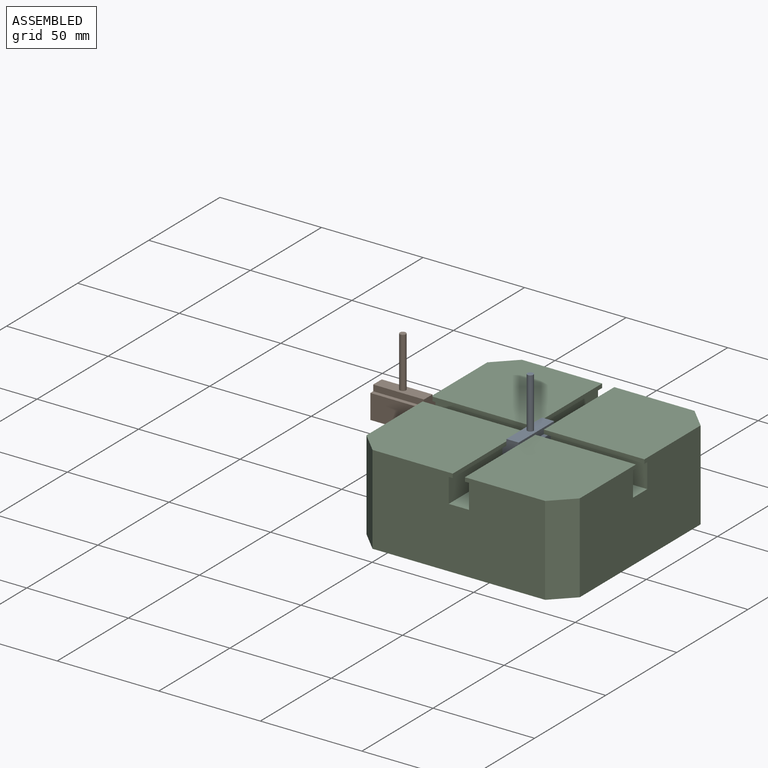
[diagram: assembled view]
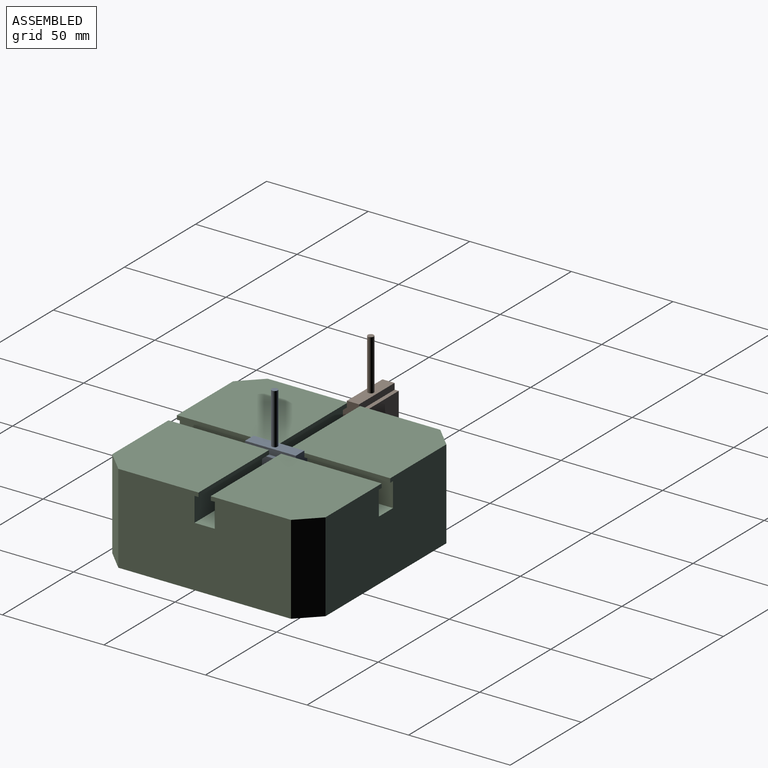
[diagram: assembled view, second angle]
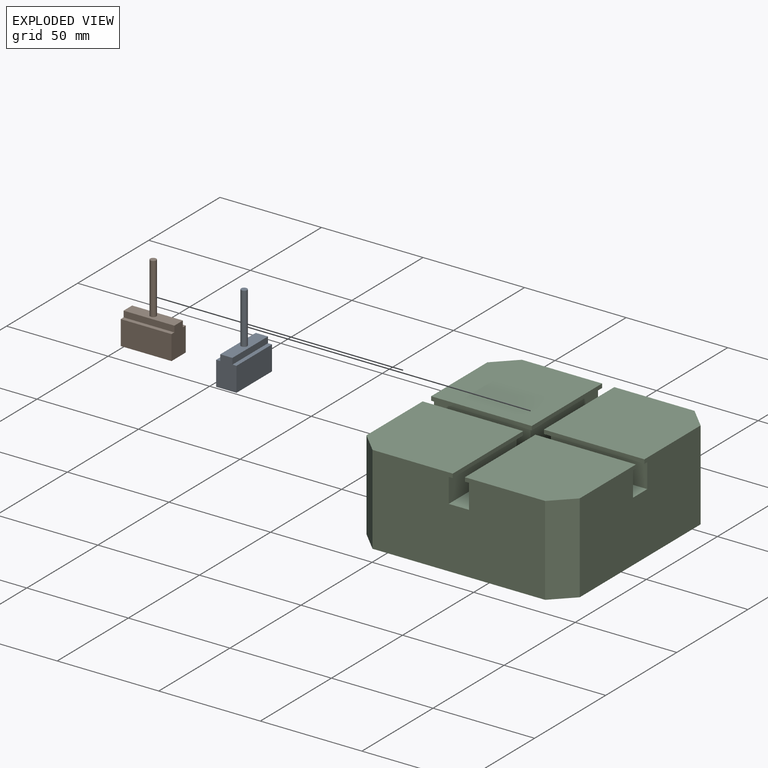
[diagram: exploded view]
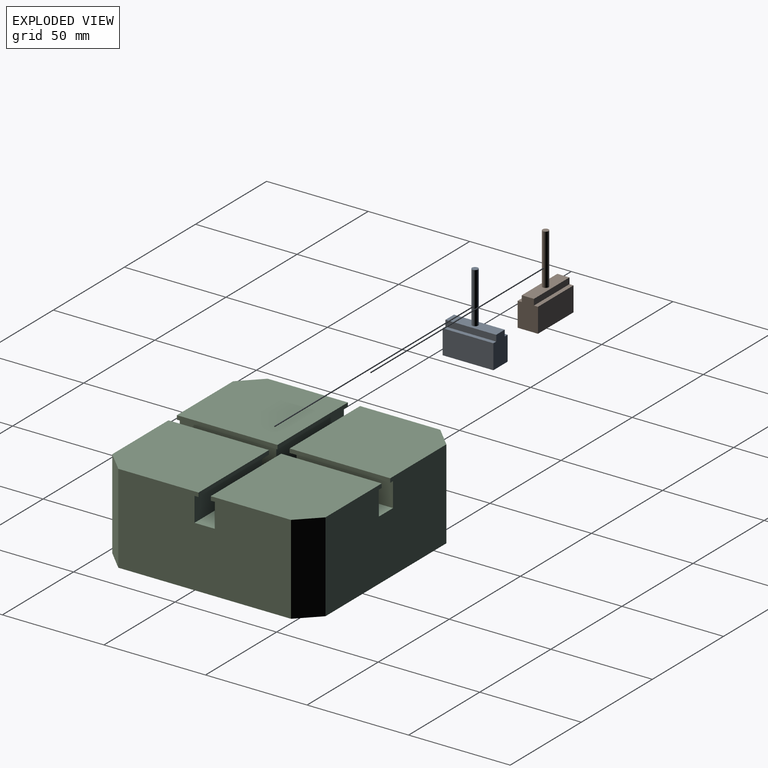
[diagram: exploded view, second angle]
ASSEMBLY  parts=3 mates=3
PART A: 12 faces, bbox 10x25x40 mm
  f0: plane 25x2mm, normal (0,0,1), area 50mm2, adj f1,f7,f8,f9
  f1: plane 25x3mm, normal (1,0,0), area 75mm2, adj f0,f2,f8,f9
  f2: plane 25x6mm, normal (0,0,1), area 142.9mm2, adj f1,f3,f8,f9,f10
  f3: plane 25x3mm, normal (-1,0,0), area 75mm2, adj f2,f4,f8,f9
  f4: plane 25x2mm, normal (0,0,1), area 50mm2, adj f3,f5,f8,f9
  f5: plane 25x12mm, normal (-1,0,0), area 300mm2, adj f4,f6,f8,f9
  f6: plane 25x10mm, normal (0,0,-1), area 250mm2, adj f5,f7,f8,f9
  f7: plane 25x12mm, normal (1,0,0), area 300mm2, adj f0,f6,f8,f9
  f8: plane 15x10mm, normal (0,-1,0), area 138mm2, adj f0,f1,f2,f3,f4,f5,f6,f7
  f9: plane 15x10mm, normal (0,1,0), area 138mm2, adj f0,f1,f2,f3,f4,f5,f6,f7
  f10: cylinder r=1.5mm len=25mm, axis (0,0,-1), area 235.6mm2, adj f2,f11
  f11: plane 3x3mm, normal (0,0,1), area 7.1mm2, adj f10
PART B: same geometry as A
PART C: 34 faces, bbox 105x105x44 mm
  f0: plane 49.5x49.5mm, normal (0,0,1), area 2400.2mm2, adj f5,f9,f10,f16,f27
  f1: plane 49.5x49.5mm, normal (0,0,1), area 2400.2mm2, adj f4,f10,f11,f12,f31
  f2: plane 49.5x49.5mm, normal (0,0,-1), area 194mm2, adj f4,f6,f10,f12,f31,f33
  f3: plane 49.5x49.5mm, normal (0,0,-1), area 194mm2, adj f5,f7,f10,f16,f27,f28
  f4: plane 49.5x2mm, normal (1,0,0), area 99mm2, adj f1,f2,f10,f31
  f5: plane 49.5x2mm, normal (-1,0,0), area 99mm2, adj f0,f3,f10,f27
  f6: plane 47.5x12mm, normal (1,0,0), area 570mm2, adj f2,f10,f23,f33
  f7: plane 47.5x12mm, normal (-1,0,0), area 570mm2, adj f3,f10,f23,f28
  f8: plane 49.5x49.5mm, normal (0,0,1), area 2400.2mm2, adj f14,f15,f16,f20,f29
  f9: plane 44x10mm, normal (0.71,0.71,0), area 622.3mm2, adj f0,f10,f16,f18
  f10: plane 85x44mm, normal (0,1,0), area 3608mm2, adj f0,f1,f2,f3,f4,f5,f6,f7
  f11: plane 44x10mm, normal (-0.71,0.71,0), area 622.3mm2, adj f1,f10,f12,f18
  f12: plane 85x44mm, normal (-1,0,0), area 3608mm2, adj f1,f2,f11,f13,f17,f18,f21,f23
  f13: plane 44x10mm, normal (-0.71,-0.71,0), area 622.3mm2, adj f12,f14,f17,f18
  f14: plane 85x44mm, normal (0,-1,0), area 3608mm2, adj f8,f13,f15,f17,f18,f19,f20,f21
  f15: plane 44x10mm, normal (0.71,-0.71,0), area 622.3mm2, adj f8,f14,f16,f18
  f16: plane 85x44mm, normal (1,0,0), area 3608mm2, adj f0,f3,f8,f9,f15,f18,f23,f25
  f17: plane 49.5x49.5mm, normal (0,0,1), area 2400.2mm2, adj f12,f13,f14,f19,f30
  f18: plane 105x105mm, normal (0,0,-1), area 10825mm2, adj f9,f10,f11,f12,f13,f14,f15,f16
  f19: plane 49.5x2mm, normal (1,0,0), area 99mm2, adj f14,f17,f21,f30
  f20: plane 49.5x2mm, normal (-1,0,0), area 99mm2, adj f8,f14,f25,f29
  f21: plane 49.5x49.5mm, normal (0,0,-1), area 194mm2, adj f12,f14,f19,f22,f30,f32
  f22: plane 47.5x12mm, normal (1,0,0), area 570mm2, adj f14,f21,f23,f32
  f23: plane 105x105mm, normal (0,0,1), area 2000mm2, adj f6,f7,f10,f12,f14,f16,f22,f24
  f24: plane 47.5x12mm, normal (-1,0,0), area 570mm2, adj f14,f23,f25,f26
  f25: plane 49.5x49.5mm, normal (0,0,-1), area 194mm2, adj f14,f16,f20,f24,f26,f29
  f26: plane 47.5x12mm, normal (0,1,0), area 570mm2, adj f16,f23,f24,f25
  f27: plane 49.5x2mm, normal (0,-1,0), area 99mm2, adj f0,f3,f5,f16
  f28: plane 47.5x12mm, normal (0,-1,0), area 570mm2, adj f3,f7,f16,f23
  f29: plane 49.5x2mm, normal (0,1,0), area 99mm2, adj f8,f16,f20,f25
  f30: plane 49.5x2mm, normal (0,1,0), area 99mm2, adj f12,f17,f19,f21
  f31: plane 49.5x2mm, normal (0,-1,0), area 99mm2, adj f1,f2,f4,f12
  f32: plane 47.5x12mm, normal (0,1,0), area 570mm2, adj f12,f21,f22,f23
  f33: plane 47.5x12mm, normal (0,-1,0), area 570mm2, adj f2,f6,f12,f23
PLACE A t=(-11.39,18.58,24.88)mm
PLACE B rot(axis=(0,0,-1),90deg) t=(-63.22,8.35,24.88)mm
PLACE C t=(-11.39,8.35,-11.12)mm fixed
MATE planar A.f10 <-> C.f23  axis (0,0,-1) through (-11.39,6.08,18.88)mm
MATE slider B.f8 <-> C.f12  axis (-1,0,0) through (-88.22,8.35,18.88)mm
MATE planar A.f7 <-> C.f24  axis (1,0,0) through (-6.39,6.08,24.88)mm
